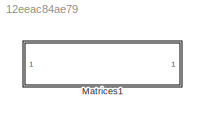
MODEL slx_12eeac84ae79
KIND model
CONFIG AbsTol = auto
CONFIG EnableMultiTasking = off
CONFIG FixedStep = auto
CONFIG MaxStep = auto
CONFIG MinStep = auto
CONFIG RelTol = 1e-3
CONFIG SampleTimeConstraint = Unconstrained
CONFIG SolverName = VariableStepAuto
CONFIG StartTime = 0.0
CONFIG StopTime = 10.0
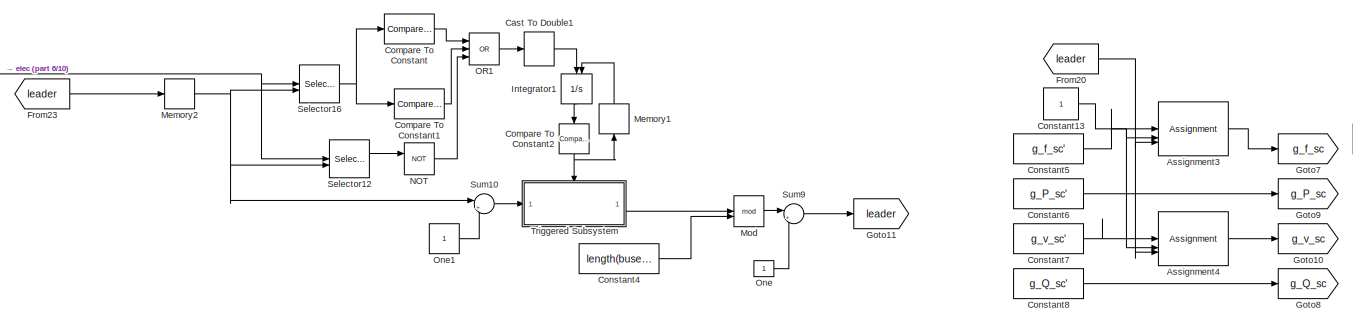
[diagram: Matrices1 - part 1/10, top left region]
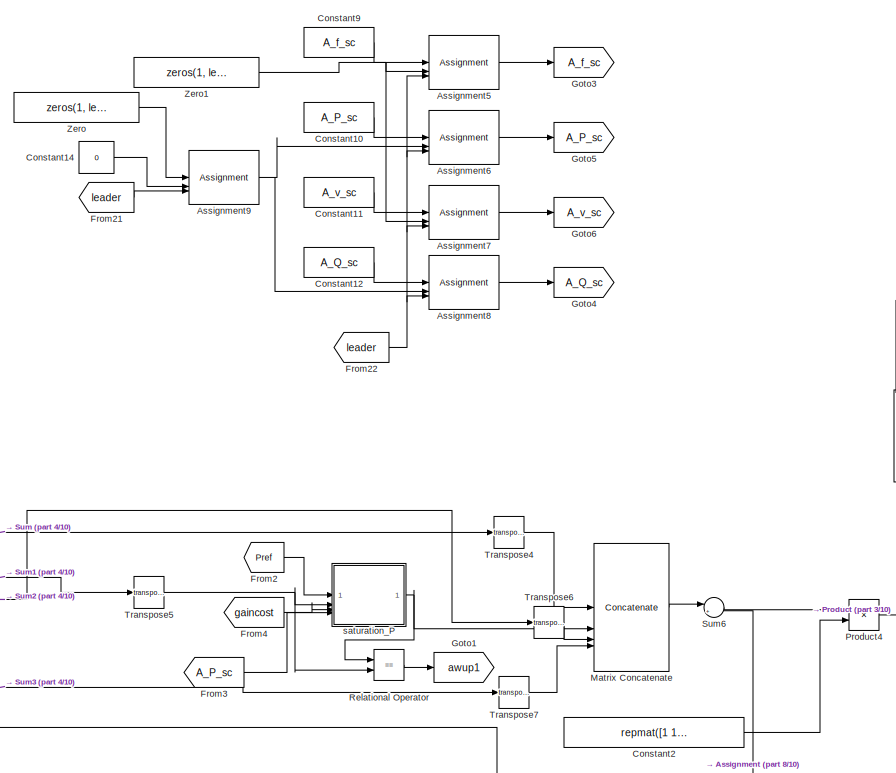
[diagram: Matrices1 - part 2/10, top center region]
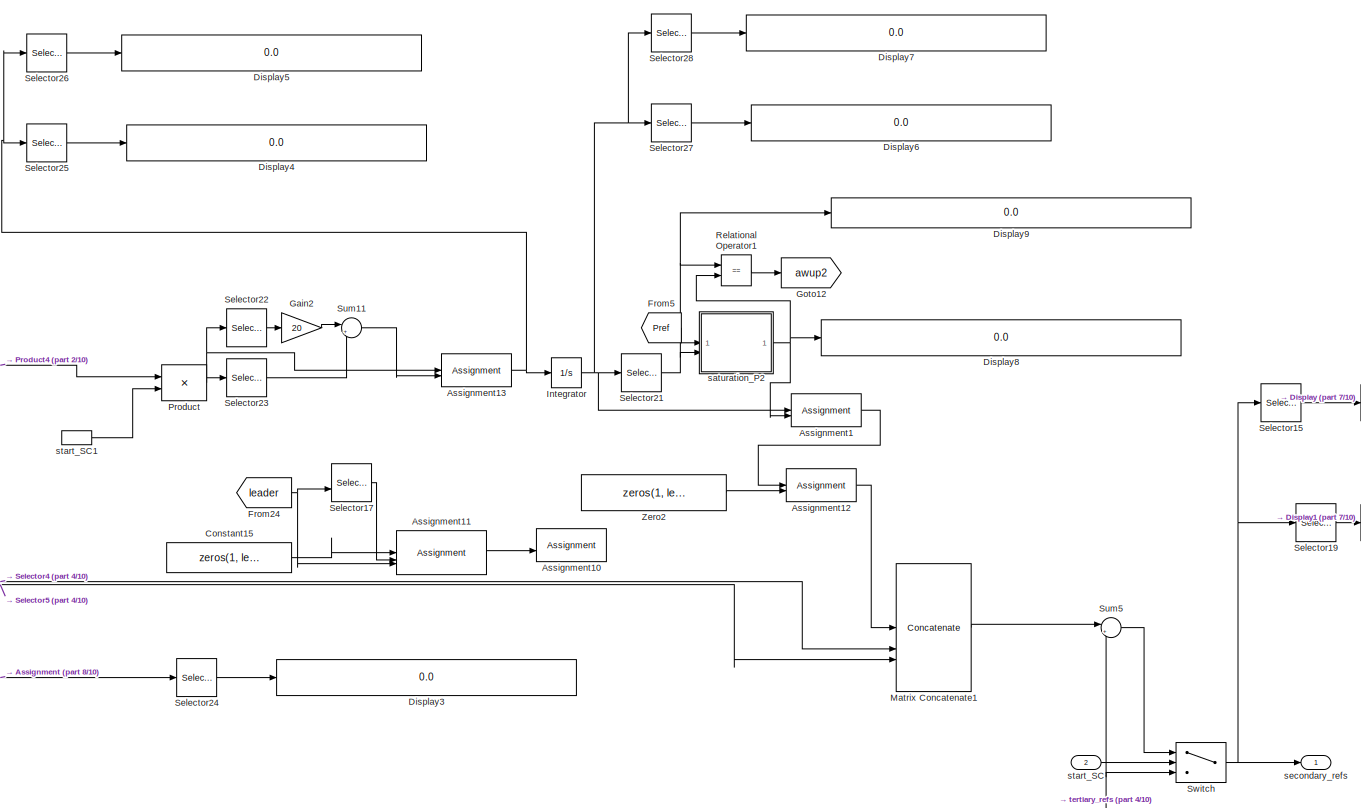
[diagram: Matrices1 - part 3/10, middle right region]
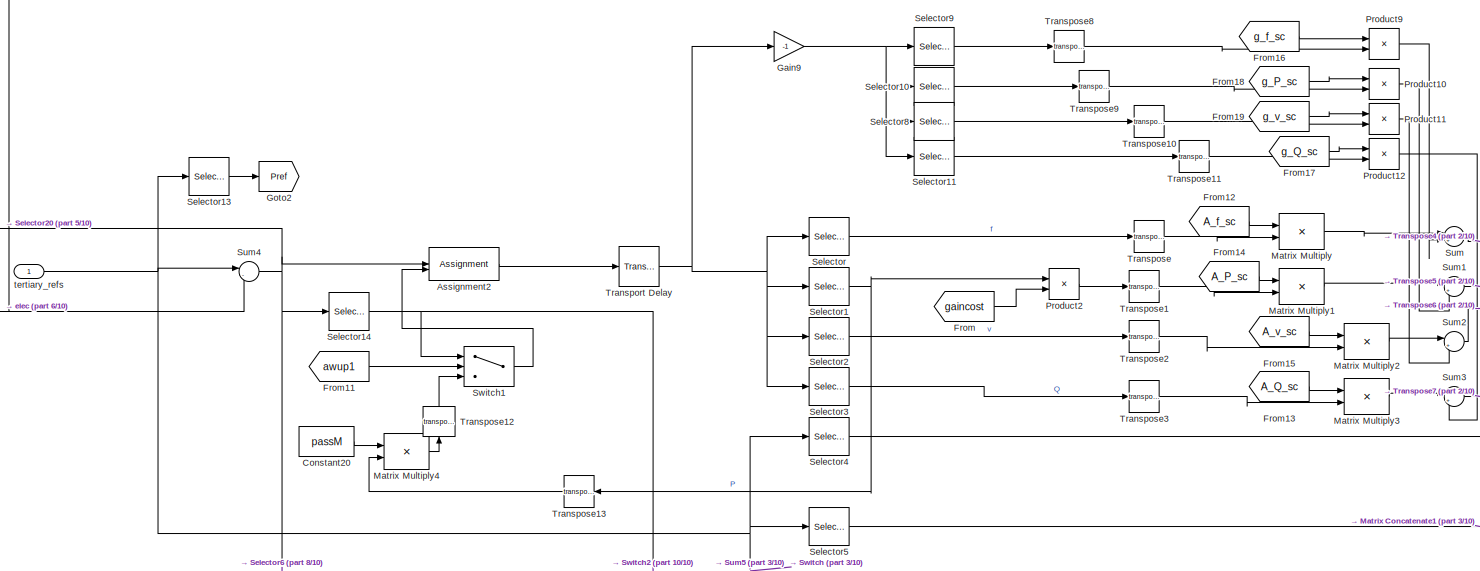
[diagram: Matrices1 - part 4/10, top left region]
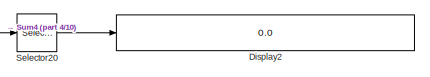
[diagram: Matrices1 - part 5/10, top left region]
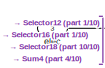
[diagram: Matrices1 - part 6/10, middle left region]
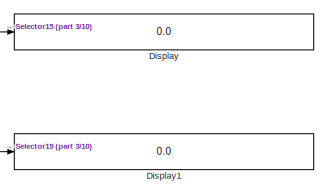
[diagram: Matrices1 - part 7/10, middle right region]
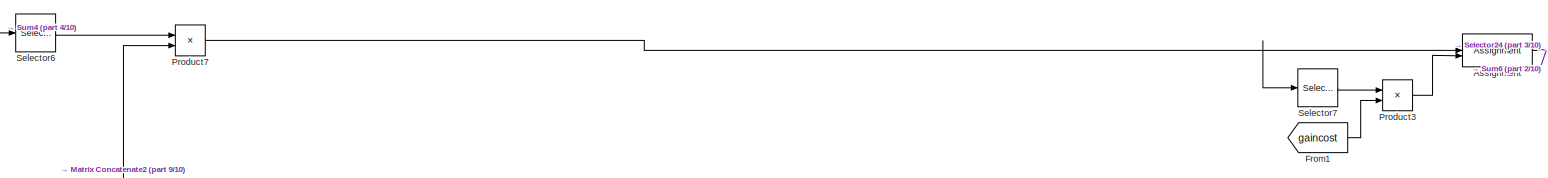
[diagram: Matrices1 - part 8/10, central region]
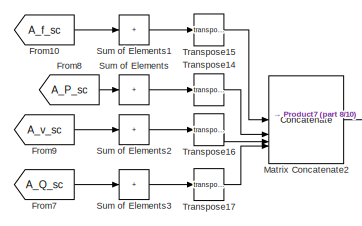
[diagram: Matrices1 - part 9/10, middle left region]
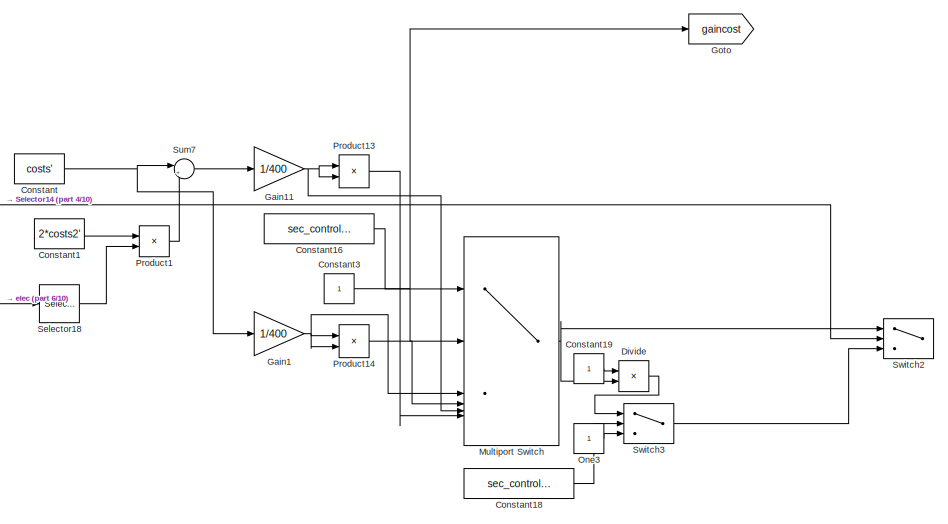
[diagram: Matrices1 - part 10/10, bottom center region]
BLOCK [SubSystem] Matrices1
  NameLocation = top
  VariantControl = Matrices1
BLOCK [Assignment] Matrices1/Assignment
  DiagnosticForDimensions = Warning
  IndexOptions = Index vector (dialog),Assign all
  Indices = 2,1
  NumberOfDimensions = 2
  OutputSizes = 1,1
BLOCK [Assignment] Matrices1/Assignment1
  DiagnosticForDimensions = Warning
  IndexOptions = Index vector (dialog),Assign all
  Indices = 2,1
  NumberOfDimensions = 2
  OutputSizes = 1,1
BLOCK [Assignment] Matrices1/Assignment10
  DiagnosticForDimensions = Warning
  IndexOptions = Index vector (dialog),Assign all
  Indices = 1,1
  NumberOfDimensions = 2
  OutputSizes = 1,1
BLOCK [Assignment] Matrices1/Assignment11
  DiagnosticForDimensions = Warning
  IndexOptions = Index vector (port)
  Indices = 1
  OutputSizes = 1
BLOCK [Assignment] Matrices1/Assignment12
  DiagnosticForDimensions = Warning
  IndexOptions = Index vector (dialog),Assign all
  Indices = 1,1
  NumberOfDimensions = 2
  OutputSizes = 1,1
BLOCK [Assignment] Matrices1/Assignment13
  DiagnosticForDimensions = Warning
  IndexOptions = Index vector (dialog),Assign all
  Indices = 2,1
  NumberOfDimensions = 2
  OutputSizes = 1,1
BLOCK [Assignment] Matrices1/Assignment2
  DiagnosticForDimensions = Warning
  IndexOptions = Index vector (dialog),Assign all
  Indices = 2,1
  NumberOfDimensions = 2
  OutputSizes = 1,1
BLOCK [Assignment] Matrices1/Assignment3
  DiagnosticForDimensions = Warning
  IndexOptions = Index vector (port)
  Indices = 1
  OutputSizes = 1
BLOCK [Assignment] Matrices1/Assignment4
  DiagnosticForDimensions = Warning
  IndexOptions = Index vector (port)
  Indices = 1
  OutputSizes = 1
BLOCK [Assignment] Matrices1/Assignment5
  DiagnosticForDimensions = Warning
  IndexOptions = Index vector (port),Assign all
  Indices = 1,1
  NumberOfDimensions = 2
  OutputSizes = 1,1
BLOCK [Assignment] Matrices1/Assignment6
  DiagnosticForDimensions = Warning
  IndexOptions = Index vector (port),Assign all
  Indices = 1,1
  NumberOfDimensions = 2
  OutputSizes = 1,1
BLOCK [Assignment] Matrices1/Assignment7
  DiagnosticForDimensions = Warning
  IndexOptions = Index vector (port),Assign all
  Indices = 1,1
  NumberOfDimensions = 2
  OutputSizes = 1,1
BLOCK [Assignment] Matrices1/Assignment8
  DiagnosticForDimensions = Warning
  IndexOptions = Index vector (port),Assign all
  Indices = 1,1
  NumberOfDimensions = 2
  OutputSizes = 1,1
BLOCK [Assignment] Matrices1/Assignment9
  DiagnosticForDimensions = Warning
  IndexOptions = Index vector (port)
  Indices = 1
  OutputSizes = 1
BLOCK [DataTypeConversion] Matrices1/Cast To Double1
  OutDataTypeStr = double
  RndMeth = Floor
  SaturateOnIntegerOverflow = off
BLOCK [Reference] Matrices1/Compare To Constant  REF=simulink/Logic and Bit
Operations/Compare
To Constant
  SourceBlock = simulink/Logic and Bit\nOperations/Compare\nTo Constant
  SourceType = Compare To Constant
BLOCK [Reference] Matrices1/Compare To Constant1  REF=simulink/Logic and Bit
Operations/Compare
To Constant
  SourceBlock = simulink/Logic and Bit\nOperations/Compare\nTo Constant
  SourceType = Compare To Constant
BLOCK [Reference] Matrices1/Compare To Constant2  REF=simulink/Logic and Bit
Operations/Compare
To Constant
  NameLocation = left
  SourceBlock = simulink/Logic and Bit\nOperations/Compare\nTo Constant
  SourceType = Compare To Constant
BLOCK [Constant] Matrices1/Constant
  Commented = on
  Value = costs'
  VectorParams1D = off
BLOCK [Constant] Matrices1/Constant1
  Commented = on
  Value = 2*costs2'
  VectorParams1D = off
BLOCK [Constant] Matrices1/Constant10
  Value = A_P_sc
  VectorParams1D = off
BLOCK [Constant] Matrices1/Constant11
  Value = A_v_sc
  VectorParams1D = off
BLOCK [Constant] Matrices1/Constant12
  Value = A_Q_sc
  VectorParams1D = off
BLOCK [Constant] Matrices1/Constant13
BLOCK [Constant] Matrices1/Constant14
  Value = 0
BLOCK [Constant] Matrices1/Constant15
  Value = zeros(1, length(buses_lf))
  VectorParams1D = off
BLOCK [Constant] Matrices1/Constant16
  Commented = on
  Value = sec_control_structure
BLOCK [Constant] Matrices1/Constant18
  Commented = on
  Value = sec_control_structure
BLOCK [Constant] Matrices1/Constant19
  Commented = on
  VectorParams1D = off
BLOCK [Constant] Matrices1/Constant2
  Value = repmat([1 1 1 1]', 1, length(buses_lf))
BLOCK [Constant] Matrices1/Constant20
  Value = passM
  VectorParams1D = off
BLOCK [Constant] Matrices1/Constant3
  Commented = on
BLOCK [Constant] Matrices1/Constant4
  Value = length(buses_lf)
BLOCK [Constant] Matrices1/Constant5
  Value = g_f_sc'
  VectorParams1D = off
BLOCK [Constant] Matrices1/Constant6
  Value = g_P_sc'
  VectorParams1D = off
BLOCK [Constant] Matrices1/Constant7
  Value = g_v_sc'
  VectorParams1D = off
BLOCK [Constant] Matrices1/Constant8
  Value = g_Q_sc'
  VectorParams1D = off
BLOCK [Constant] Matrices1/Constant9
  Value = A_f_sc
  VectorParams1D = off
BLOCK [Display] Matrices1/Display
  Decimation = 1
BLOCK [Display] Matrices1/Display1
  Decimation = 1
BLOCK [Display] Matrices1/Display2
  Decimation = 1
BLOCK [Display] Matrices1/Display3
  Decimation = 1
BLOCK [Display] Matrices1/Display4
  Decimation = 1
BLOCK [Display] Matrices1/Display5
  Decimation = 1
BLOCK [Display] Matrices1/Display6
  Decimation = 1
BLOCK [Display] Matrices1/Display7
  Decimation = 1
BLOCK [Display] Matrices1/Display8
  Decimation = 1
BLOCK [Display] Matrices1/Display9
  Decimation = 1
BLOCK [Product] Matrices1/Divide
  Commented = on
  Inputs = */
BLOCK [From] Matrices1/From
  GotoTag = gaincost
BLOCK [From] Matrices1/From1
  GotoTag = gaincost
BLOCK [From] Matrices1/From10
  GotoTag = A_f_sc
BLOCK [From] Matrices1/From11
  GotoTag = awup1
BLOCK [From] Matrices1/From12
  GotoTag = A_f_sc
BLOCK [From] Matrices1/From13
  GotoTag = A_Q_sc
BLOCK [From] Matrices1/From14
  GotoTag = A_P_sc
BLOCK [From] Matrices1/From15
  GotoTag = A_v_sc
BLOCK [From] Matrices1/From16
  GotoTag = g_f_sc
BLOCK [From] Matrices1/From17
  GotoTag = g_Q_sc
BLOCK [From] Matrices1/From18
  GotoTag = g_P_sc
BLOCK [From] Matrices1/From19
  GotoTag = g_v_sc
BLOCK [From] Matrices1/From2
  GotoTag = Pref
BLOCK [From] Matrices1/From20
  GotoTag = leader
BLOCK [From] Matrices1/From21
  GotoTag = leader
BLOCK [From] Matrices1/From22
  GotoTag = leader
BLOCK [From] Matrices1/From23
  GotoTag = leader
BLOCK [From] Matrices1/From24
  GotoTag = leader
BLOCK [From] Matrices1/From3
  GotoTag = A_P_sc
BLOCK [From] Matrices1/From4
  GotoTag = gaincost
BLOCK [From] Matrices1/From5
  GotoTag = Pref
BLOCK [From] Matrices1/From7
  GotoTag = A_Q_sc
BLOCK [From] Matrices1/From8
  GotoTag = A_P_sc
BLOCK [From] Matrices1/From9
  GotoTag = A_v_sc
BLOCK [Gain] Matrices1/Gain1
  Commented = on
  Gain = 1/400
BLOCK [Gain] Matrices1/Gain11
  Commented = on
  Gain = 1/400
BLOCK [Gain] Matrices1/Gain2
  Gain = 20
BLOCK [Gain] Matrices1/Gain9
  Gain = -1
BLOCK [Goto] Matrices1/Goto
  GotoTag = gaincost
BLOCK [Goto] Matrices1/Goto1
  GotoTag = awup1
BLOCK [Goto] Matrices1/Goto10
  GotoTag = g_v_sc
BLOCK [Goto] Matrices1/Goto11
  GotoTag = leader
BLOCK [Goto] Matrices1/Goto12
  GotoTag = awup2
BLOCK [Goto] Matrices1/Goto2
  GotoTag = Pref
BLOCK [Goto] Matrices1/Goto3
  GotoTag = A_f_sc
BLOCK [Goto] Matrices1/Goto4
  GotoTag = A_Q_sc
BLOCK [Goto] Matrices1/Goto5
  GotoTag = A_P_sc
BLOCK [Goto] Matrices1/Goto6
  GotoTag = A_v_sc
BLOCK [Goto] Matrices1/Goto7
  GotoTag = g_f_sc
BLOCK [Goto] Matrices1/Goto8
  GotoTag = g_Q_sc
BLOCK [Goto] Matrices1/Goto9
  GotoTag = g_P_sc
BLOCK [Integrator] Matrices1/Integrator
BLOCK [Integrator] Matrices1/Integrator1
  ExternalReset = rising
  NameLocation = left
BLOCK [Concatenate] Matrices1/Matrix Concatenate
  Mode = Multidimensional array
  NumInputs = 4
BLOCK [Concatenate] Matrices1/Matrix Concatenate1
  Mode = Multidimensional array
  NumInputs = 3
BLOCK [Concatenate] Matrices1/Matrix Concatenate2
  Mode = Multidimensional array
  NumInputs = 4
BLOCK [Product] Matrices1/Matrix Multiply
  Multiplication = Matrix(*)
BLOCK [Product] Matrices1/Matrix Multiply1
  Multiplication = Matrix(*)
BLOCK [Product] Matrices1/Matrix Multiply2
  Multiplication = Matrix(*)
BLOCK [Product] Matrices1/Matrix Multiply3
  Multiplication = Matrix(*)
BLOCK [Product] Matrices1/Matrix Multiply4
  Multiplication = Matrix(*)
BLOCK [Memory] Matrices1/Memory1
  NameLocation = right
BLOCK [Memory] Matrices1/Memory2
  InitialCondition = 1
BLOCK [Math] Matrices1/Mod
  Operator = mod
BLOCK [MultiPortSwitch] Matrices1/Multiport Switch
  Commented = on
  InputSameDT = off
  Inputs = 5
  SaturateOnIntegerOverflow = off
BLOCK [Logic] Matrices1/NOT
  AllPortsSameDT = off
  IconShape = distinctive
  Operator = NOT
  OutDataTypeStr = boolean
BLOCK [Logic] Matrices1/OR1
  AllPortsSameDT = off
  IconShape = distinctive
  Inputs = 3
  Operator = OR
  OutDataTypeStr = boolean
BLOCK [Constant] Matrices1/One
  OutDataTypeStr = Inherit: Inherit via back propagation
BLOCK [Constant] Matrices1/One1
  OutDataTypeStr = Inherit: Inherit via back propagation
BLOCK [Constant] Matrices1/One3
  Commented = on
  OutDataTypeStr = Inherit: Inherit via back propagation
BLOCK [Product] Matrices1/Product
BLOCK [Product] Matrices1/Product1
  Commented = on
BLOCK [Product] Matrices1/Product10
BLOCK [Product] Matrices1/Product11
BLOCK [Product] Matrices1/Product12
BLOCK [Product] Matrices1/Product13
  Commented = on
BLOCK [Product] Matrices1/Product14
  Commented = on
BLOCK [Product] Matrices1/Product2
BLOCK [Product] Matrices1/Product3
BLOCK [Product] Matrices1/Product4
BLOCK [Product] Matrices1/Product7
BLOCK [Product] Matrices1/Product9
BLOCK [RelationalOperator] Matrices1/Relational Operator
  InputSameDT = off
  Operator = ==
  OutDataTypeStr = boolean
  RndMeth = Simplest
BLOCK [RelationalOperator] Matrices1/Relational Operator1
  InputSameDT = off
  Operator = ==
  OutDataTypeStr = boolean
  RndMeth = Simplest
BLOCK [Selector] Matrices1/Selector
  IndexOptions = Index vector (dialog),Select all
  Indices = 1,1
  InputPortWidth = 3
  NumberOfDimensions = 2
  OutputSizes = 1,1
BLOCK [Selector] Matrices1/Selector1
  IndexOptions = Index vector (dialog),Select all
  Indices = 2,1
  InputPortWidth = 3
  NumberOfDimensions = 2
  OutputSizes = 1,1
BLOCK [Selector] Matrices1/Selector10
  IndexOptions = Index vector (dialog),Select all
  Indices = 2,1
  InputPortWidth = 3
  NumberOfDimensions = 2
  OutputSizes = 1,1
BLOCK [Selector] Matrices1/Selector11
  IndexOptions = Index vector (dialog),Select all
  Indices = 4,1
  InputPortWidth = 3
  NumberOfDimensions = 2
  OutputSizes = 1,1
BLOCK [Selector] Matrices1/Selector12
  IndexOptions = Index vector (dialog),Index vector (port)
  Indices = 6,1
  InputPortWidth = length(buses_lf)
  NumberOfDimensions = 2
  OutputSizes = 1,1
BLOCK [Selector] Matrices1/Selector13
  IndexOptions = Index vector (dialog),Select all
  Indices = 2,1
  InputPortWidth = 3
  NumberOfDimensions = 2
  OutputSizes = 1,1
BLOCK [Selector] Matrices1/Selector14
  IndexOptions = Index vector (dialog),Select all
  Indices = 2,1
  InputPortWidth = 3
  NumberOfDimensions = 2
  OutputSizes = 1,1
BLOCK [Selector] Matrices1/Selector15
  IndexOptions = Index vector (dialog),Select all
  Indices = 2,1
  InputPortWidth = 3
  NumberOfDimensions = 2
  OutputSizes = 1,1
BLOCK [Selector] Matrices1/Selector16
  IndexOptions = Index vector (dialog),Index vector (port)
  Indices = 2,1
  InputPortWidth = length(buses_lf)
  NumberOfDimensions = 2
  OutputSizes = 1,1
BLOCK [Selector] Matrices1/Selector17
  IndexOptions = Index vector (dialog),Index vector (port)
  Indices = 1,1
  InputPortWidth = 3
  NumberOfDimensions = 2
  OutputSizes = 1,1
BLOCK [Selector] Matrices1/Selector18
  Commented = on
  IndexOptions = Index vector (dialog),Select all
  Indices = 2,1
  InputPortWidth = 3
  NumberOfDimensions = 2
  OutputSizes = 1,1
BLOCK [Selector] Matrices1/Selector19
  IndexOptions = Index vector (dialog),Select all
  Indices = 1,1
  InputPortWidth = 3
  NumberOfDimensions = 2
  OutputSizes = 1,1
BLOCK [Selector] Matrices1/Selector2
  IndexOptions = Index vector (dialog),Select all
  Indices = 3,1
  InputPortWidth = 3
  NumberOfDimensions = 2
  OutputSizes = 1,1
BLOCK [Selector] Matrices1/Selector20
  IndexOptions = Index vector (dialog),Select all
  Indices = 2,1
  InputPortWidth = 3
  NumberOfDimensions = 2
  OutputSizes = 1,1
BLOCK [Selector] Matrices1/Selector21
  IndexOptions = Index vector (dialog),Select all
  Indices = 2,1
  InputPortWidth = 3
  NumberOfDimensions = 2
  OutputSizes = 1,1
BLOCK [Selector] Matrices1/Selector22
  IndexOptions = Index vector (dialog),Select all
  Indices = 1,1
  InputPortWidth = 3
  NumberOfDimensions = 2
  OutputSizes = 1,1
BLOCK [Selector] Matrices1/Selector23
  IndexOptions = Index vector (dialog),Select all
  Indices = 2,1
  InputPortWidth = 3
  NumberOfDimensions = 2
  OutputSizes = 1,1
BLOCK [Selector] Matrices1/Selector24
  IndexOptions = Index vector (dialog),Select all
  Indices = 2,1
  InputPortWidth = 3
  NumberOfDimensions = 2
  OutputSizes = 1,1
BLOCK [Selector] Matrices1/Selector25
  IndexOptions = Index vector (dialog),Select all
  Indices = 2,1
  InputPortWidth = 3
  NumberOfDimensions = 2
  OutputSizes = 1,1
BLOCK [Selector] Matrices1/Selector26
  IndexOptions = Index vector (dialog),Select all
  Indices = 1,1
  InputPortWidth = 3
  NumberOfDimensions = 2
  OutputSizes = 1,1
BLOCK [Selector] Matrices1/Selector27
  IndexOptions = Index vector (dialog),Select all
  Indices = 2,1
  InputPortWidth = 3
  NumberOfDimensions = 2
  OutputSizes = 1,1
BLOCK [Selector] Matrices1/Selector28
  IndexOptions = Index vector (dialog),Select all
  Indices = 1,1
  InputPortWidth = 3
  NumberOfDimensions = 2
  OutputSizes = 1,1
BLOCK [Selector] Matrices1/Selector3
  IndexOptions = Index vector (dialog),Select all
  Indices = 4,1
  InputPortWidth = 3
  NumberOfDimensions = 2
  OutputSizes = 1,1
BLOCK [Selector] Matrices1/Selector4
  IndexOptions = Index vector (dialog),Select all
  Indices = 5,1
  InputPortWidth = 3
  NumberOfDimensions = 2
  OutputSizes = 1,1
BLOCK [Selector] Matrices1/Selector5
  IndexOptions = Index vector (dialog),Select all
  Indices = 6,1
  InputPortWidth = 3
  NumberOfDimensions = 2
  OutputSizes = 1,1
BLOCK [Selector] Matrices1/Selector6
  IndexOptions = Index vector (dialog),Select all
  Indices = 1:4,1
  InputPortWidth = 3
  NumberOfDimensions = 2
  OutputSizes = 1,1
BLOCK [Selector] Matrices1/Selector7
  IndexOptions = Index vector (dialog),Select all
  Indices = 2,1
  InputPortWidth = 3
  NumberOfDimensions = 2
  OutputSizes = 1,1
BLOCK [Selector] Matrices1/Selector8
  IndexOptions = Index vector (dialog),Select all
  Indices = 3,1
  InputPortWidth = 3
  NumberOfDimensions = 2
  OutputSizes = 1,1
BLOCK [Selector] Matrices1/Selector9
  IndexOptions = Index vector (dialog),Select all
  Indices = 1,1
  InputPortWidth = 3
  NumberOfDimensions = 2
  OutputSizes = 1,1
BLOCK [Sum] Matrices1/Sum
  Inputs = |++
BLOCK [Sum] Matrices1/Sum of Elements
  CollapseDim = 2
  CollapseMode = Specified dimension
  IconShape = rectangular
  Inputs = +
BLOCK [Sum] Matrices1/Sum of Elements1
  CollapseDim = 2
  CollapseMode = Specified dimension
  IconShape = rectangular
  Inputs = +
BLOCK [Sum] Matrices1/Sum of Elements2
  CollapseDim = 2
  CollapseMode = Specified dimension
  IconShape = rectangular
  Inputs = +
BLOCK [Sum] Matrices1/Sum of Elements3
  CollapseDim = 2
  CollapseMode = Specified dimension
  IconShape = rectangular
  Inputs = +
BLOCK [Sum] Matrices1/Sum1
  Inputs = |++
BLOCK [Sum] Matrices1/Sum10
  Inputs = |+-
BLOCK [Sum] Matrices1/Sum11
  Inputs = |++
BLOCK [Sum] Matrices1/Sum2
  Inputs = |++
BLOCK [Sum] Matrices1/Sum3
  Inputs = |++
BLOCK [Sum] Matrices1/Sum4
  Inputs = |-+
BLOCK [Sum] Matrices1/Sum5
  Inputs = |++
BLOCK [Sum] Matrices1/Sum6
  Inputs = |+-
BLOCK [Sum] Matrices1/Sum7
  Commented = on
  Inputs = |++
BLOCK [Sum] Matrices1/Sum9
  Inputs = |++
BLOCK [Switch] Matrices1/Switch
  Criteria = u2 > Threshold
  InputSameDT = off
  SaturateOnIntegerOverflow = off
BLOCK [Switch] Matrices1/Switch1
  Criteria = u2 > Threshold
  InputSameDT = off
  SaturateOnIntegerOverflow = off
BLOCK [Switch] Matrices1/Switch2
  Commented = on
  Criteria = u2 > Threshold
  InputSameDT = off
  SaturateOnIntegerOverflow = off
BLOCK [Switch] Matrices1/Switch3
  Commented = on
  Criteria = u2 > Threshold
  InputSameDT = off
  SaturateOnIntegerOverflow = off
  Threshold = 1
BLOCK [TransportDelay] Matrices1/Transport Delay
  DelayTime = 0.1
  PadeOrder = 3
BLOCK [Math] Matrices1/Transpose
  Operator = transpose
BLOCK [Math] Matrices1/Transpose1
  Operator = transpose
BLOCK [Math] Matrices1/Transpose10
  Operator = transpose
BLOCK [Math] Matrices1/Transpose11
  Operator = transpose
BLOCK [Math] Matrices1/Transpose12
  NameLocation = right
  Operator = transpose
BLOCK [Math] Matrices1/Transpose13
  Operator = transpose
BLOCK [Math] Matrices1/Transpose14
  Operator = transpose
BLOCK [Math] Matrices1/Transpose15
  Operator = transpose
BLOCK [Math] Matrices1/Transpose16
  Operator = transpose
BLOCK [Math] Matrices1/Transpose17
  Operator = transpose
BLOCK [Math] Matrices1/Transpose2
  Operator = transpose
BLOCK [Math] Matrices1/Transpose3
  Operator = transpose
BLOCK [Math] Matrices1/Transpose4
  Operator = transpose
BLOCK [Math] Matrices1/Transpose5
  Operator = transpose
BLOCK [Math] Matrices1/Transpose6
  Operator = transpose
BLOCK [Math] Matrices1/Transpose7
  Operator = transpose
BLOCK [Math] Matrices1/Transpose8
  Operator = transpose
BLOCK [Math] Matrices1/Transpose9
  Operator = transpose
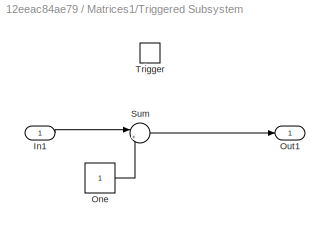
BLOCK [SubSystem] Matrices1/Triggered Subsystem
  TreatAsAtomicUnit = on
BLOCK [Inport] Matrices1/Triggered Subsystem/In1
BLOCK [Constant] Matrices1/Triggered Subsystem/One
  OutDataTypeStr = Inherit: Inherit via back propagation
BLOCK [Outport] Matrices1/Triggered Subsystem/Out1
BLOCK [Sum] Matrices1/Triggered Subsystem/Sum
  Inputs = |++
BLOCK [TriggerPort] Matrices1/Triggered Subsystem/Trigger
  StatesWhenEnabling = held
  VariantControl = (inherit)
BLOCK [Constant] Matrices1/Zero
  OutDataTypeStr = Inherit: Inherit via back propagation
  Value = zeros(1, length(buses_lf))
  VectorParams1D = off
BLOCK [Constant] Matrices1/Zero1
  OutDataTypeStr = Inherit: Inherit via back propagation
  Value = zeros(1, length(buses_lf))
  VectorParams1D = off
BLOCK [Constant] Matrices1/Zero2
  OutDataTypeStr = Inherit: Inherit via back propagation
  Value = zeros(1, length(buses_lf))
  VectorParams1D = off
BLOCK [Inport] Matrices1/elec
  Port = 3
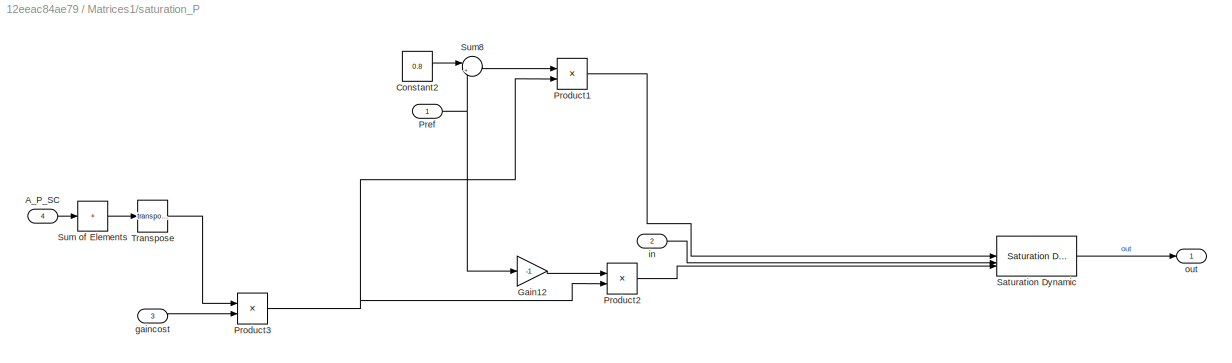
BLOCK [SubSystem] Matrices1/saturation_P
BLOCK [Inport] Matrices1/saturation_P/A_P_SC
  Port = 4
BLOCK [Constant] Matrices1/saturation_P/Constant2
  Value = 0.8
BLOCK [Gain] Matrices1/saturation_P/Gain12
  Gain = -1
BLOCK [Inport] Matrices1/saturation_P/Pref
BLOCK [Product] Matrices1/saturation_P/Product1
BLOCK [Product] Matrices1/saturation_P/Product2
BLOCK [Product] Matrices1/saturation_P/Product3
BLOCK [Reference] Matrices1/saturation_P/Saturation Dynamic  REF=simulink/Discontinuities/Saturation
Dynamic
  SourceBlock = simulink/Discontinuities/Saturation\nDynamic
  SourceType = Saturation Dynamic
BLOCK [Sum] Matrices1/saturation_P/Sum of Elements
  CollapseDim = 2
  CollapseMode = Specified dimension
  IconShape = rectangular
  Inputs = +
BLOCK [Sum] Matrices1/saturation_P/Sum8
  Inputs = |+-
BLOCK [Math] Matrices1/saturation_P/Transpose
  Operator = transpose
BLOCK [Inport] Matrices1/saturation_P/gaincost
  Port = 3
BLOCK [Inport] Matrices1/saturation_P/in
  Port = 2
BLOCK [Outport] Matrices1/saturation_P/out
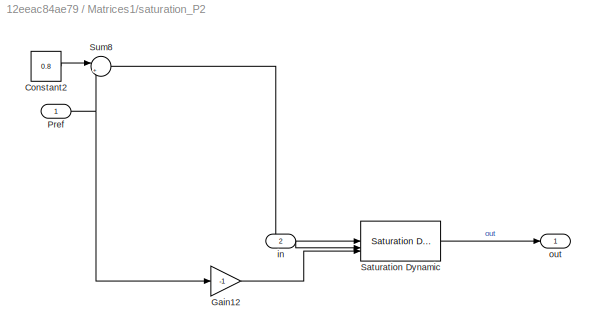
BLOCK [SubSystem] Matrices1/saturation_P2
BLOCK [Constant] Matrices1/saturation_P2/Constant2
  Value = 0.8
BLOCK [Gain] Matrices1/saturation_P2/Gain12
  Gain = -1
BLOCK [Inport] Matrices1/saturation_P2/Pref
BLOCK [Reference] Matrices1/saturation_P2/Saturation Dynamic  REF=simulink/Discontinuities/Saturation
Dynamic
  SourceBlock = simulink/Discontinuities/Saturation\nDynamic
  SourceType = Saturation Dynamic
BLOCK [Sum] Matrices1/saturation_P2/Sum8
  Inputs = |+-
BLOCK [Inport] Matrices1/saturation_P2/in
  Port = 2
BLOCK [Outport] Matrices1/saturation_P2/out
BLOCK [Outport] Matrices1/secondary_refs
BLOCK [Inport] Matrices1/start_SC
  Port = 2
BLOCK [InportShadow] Matrices1/start_SC1
  Port = 2
BLOCK [Inport] Matrices1/tertiary_refs
LINE Matrices1/Assignment11:1 -> Matrices1/Assignment10:2
LINE Matrices1/Assignment12:1 -> Matrices1/Matrix Concatenate1:1
NET Matrices1/Assignment13:1 -> Matrices1/Integrator:1, Matrices1/Selector25:1, Matrices1/Selector26:1
LINE Matrices1/Assignment1:1 -> Matrices1/Assignment12:1
LINE Matrices1/Assignment2:1 -> Matrices1/Transport Delay:1
LINE Matrices1/Assignment3:1 -> Matrices1/Goto7:1
LINE Matrices1/Assignment4:1 -> Matrices1/Goto10:1
LINE Matrices1/Assignment5:1 -> Matrices1/Goto3:1
LINE Matrices1/Assignment6:1 -> Matrices1/Goto5:1
LINE Matrices1/Assignment7:1 -> Matrices1/Goto6:1
LINE Matrices1/Assignment8:1 -> Matrices1/Goto4:1
NET Matrices1/Assignment9:1 -> Matrices1/Assignment6:2, Matrices1/Assignment8:2
NET Matrices1/Assignment:1 -> Matrices1/Selector24:1, Matrices1/Sum6:2
LINE Matrices1/Cast To Double1:1 -> Matrices1/Integrator1:1
LINE Matrices1/Compare To Constant1:1 -> Matrices1/OR1:2
NET Matrices1/Compare To Constant2:1 -> Matrices1/Memory1:1, Matrices1/Triggered Subsystem:trigger
LINE Matrices1/Compare To Constant:1 -> Matrices1/OR1:1
LINE Matrices1/Constant10:1 -> Matrices1/Assignment6:1
LINE Matrices1/Constant11:1 -> Matrices1/Assignment7:1
LINE Matrices1/Constant12:1 -> Matrices1/Assignment8:1
NET Matrices1/Constant13:1 -> Matrices1/Assignment3:2, Matrices1/Assignment4:2
LINE Matrices1/Constant14:1 -> Matrices1/Assignment9:2
LINE Matrices1/Constant15:1 -> Matrices1/Assignment11:1
LINE Matrices1/Constant16:1 -> Matrices1/Multiport Switch:1
LINE Matrices1/Constant18:1 -> Matrices1/Switch3:2
LINE Matrices1/Constant19:1 -> Matrices1/Divide:1
LINE Matrices1/Constant1:1 -> Matrices1/Product1:1
LINE Matrices1/Constant20:1 -> Matrices1/Matrix Multiply4:1
LINE Matrices1/Constant2:1 -> Matrices1/Product4:2
NET Matrices1/Constant3:1 -> Matrices1/Goto:1, Matrices1/Multiport Switch:2
LINE Matrices1/Constant4:1 -> Matrices1/Mod:2
LINE Matrices1/Constant5:1 -> Matrices1/Assignment3:1
LINE Matrices1/Constant6:1 -> Matrices1/Goto9:1
LINE Matrices1/Constant7:1 -> Matrices1/Assignment4:1
LINE Matrices1/Constant8:1 -> Matrices1/Goto8:1
LINE Matrices1/Constant9:1 -> Matrices1/Assignment5:1
NET Matrices1/Constant:1 -> Matrices1/Gain1:1, Matrices1/Sum7:1
LINE Matrices1/Divide:1 -> Matrices1/Switch3:1
LINE Matrices1/From10:1 -> Matrices1/Sum of Elements1:1
LINE Matrices1/From11:1 -> Matrices1/Switch1:2
LINE Matrices1/From12:1 -> Matrices1/Matrix Multiply:1
LINE Matrices1/From13:1 -> Matrices1/Matrix Multiply3:1
LINE Matrices1/From14:1 -> Matrices1/Matrix Multiply1:1
LINE Matrices1/From15:1 -> Matrices1/Matrix Multiply2:1
LINE Matrices1/From16:1 -> Matrices1/Product9:1
LINE Matrices1/From17:1 -> Matrices1/Product12:1
LINE Matrices1/From18:1 -> Matrices1/Product10:1
LINE Matrices1/From19:1 -> Matrices1/Product11:1
LINE Matrices1/From1:1 -> Matrices1/Product3:2
NET Matrices1/From20:1 -> Matrices1/Assignment3:3, Matrices1/Assignment4:3
LINE Matrices1/From21:1 -> Matrices1/Assignment9:3
NET Matrices1/From22:1 -> Matrices1/Assignment5:3, Matrices1/Assignment6:3, Matrices1/Assignment7:3, Matrices1/Assignment8:3
LINE Matrices1/From23:1 -> Matrices1/Memory2:1
NET Matrices1/From24:1 -> Matrices1/Assignment11:3, Matrices1/Selector17:2
LINE Matrices1/From2:1 -> Matrices1/saturation_P:1
LINE Matrices1/From3:1 -> Matrices1/saturation_P:4
LINE Matrices1/From4:1 -> Matrices1/saturation_P:3
LINE Matrices1/From5:1 -> Matrices1/saturation_P2:1
LINE Matrices1/From7:1 -> Matrices1/Sum of Elements3:1
LINE Matrices1/From8:1 -> Matrices1/Sum of Elements:1
LINE Matrices1/From9:1 -> Matrices1/Sum of Elements2:1
LINE Matrices1/From:1 -> Matrices1/Product2:2
NET Matrices1/Gain11:1 -> Matrices1/Multiport Switch:5, Matrices1/Product13:1, Matrices1/Product13:2
NET Matrices1/Gain1:1 -> Matrices1/Multiport Switch:3, Matrices1/Product14:1, Matrices1/Product14:2
LINE Matrices1/Gain2:1 -> Matrices1/Sum11:1
NET Matrices1/Gain9:1 -> Matrices1/Selector10:1, Matrices1/Selector11:1, Matrices1/Selector8:1, Matrices1/Selector9:1
LINE Matrices1/Integrator1:1 -> Matrices1/Compare To Constant2:1
NET Matrices1/Integrator:1 -> Matrices1/Assignment1:1, Matrices1/Selector21:1, Matrices1/Selector27:1, Matrices1/Selector28:1
LINE Matrices1/Matrix Concatenate1:1 -> Matrices1/Sum5:1
LINE Matrices1/Matrix Concatenate2:1 -> Matrices1/Product7:2
LINE Matrices1/Matrix Concatenate:1 -> Matrices1/Sum6:1
LINE Matrices1/Matrix Multiply1:1 -> Matrices1/Sum1:1
LINE Matrices1/Matrix Multiply2:1 -> Matrices1/Sum2:1
LINE Matrices1/Matrix Multiply3:1 -> Matrices1/Sum3:1
LINE Matrices1/Matrix Multiply4:1 -> Matrices1/Transpose12:1
LINE Matrices1/Matrix Multiply:1 -> Matrices1/Sum:1
LINE Matrices1/Memory1:1 -> Matrices1/Integrator1:2
NET Matrices1/Memory2:1 -> Matrices1/Selector12:2, Matrices1/Selector16:2, Matrices1/Sum10:1
LINE Matrices1/Mod:1 -> Matrices1/Sum9:1
NET Matrices1/Multiport Switch:1 -> Matrices1/Divide:2, Matrices1/Switch2:1
LINE Matrices1/NOT:1 -> Matrices1/OR1:3
LINE Matrices1/OR1:1 -> Matrices1/Cast To Double1:1
LINE Matrices1/One1:1 -> Matrices1/Sum10:2
LINE Matrices1/One3:1 -> Matrices1/Switch3:3
LINE Matrices1/One:1 -> Matrices1/Sum9:2
LINE Matrices1/Product10:1 -> Matrices1/Sum1:2
LINE Matrices1/Product11:1 -> Matrices1/Sum2:2
LINE Matrices1/Product12:1 -> Matrices1/Sum3:2
LINE Matrices1/Product13:1 -> Matrices1/Multiport Switch:6
LINE Matrices1/Product14:1 -> Matrices1/Multiport Switch:4
LINE Matrices1/Product1:1 -> Matrices1/Sum7:2
LINE Matrices1/Product2:1 -> Matrices1/Transpose1:1
LINE Matrices1/Product3:1 -> Matrices1/Assignment:2
LINE Matrices1/Product4:1 -> Matrices1/Product:1
NET Matrices1/Product7:1 -> Matrices1/Assignment:1, Matrices1/Selector7:1
LINE Matrices1/Product9:1 -> Matrices1/Sum:2
NET Matrices1/Product:1 -> Matrices1/Assignment13:1, Matrices1/Selector22:1, Matrices1/Selector23:1
LINE Matrices1/Relational Operator1:1 -> Matrices1/Goto12:1
LINE Matrices1/Relational Operator:1 -> Matrices1/Goto1:1
LINE Matrices1/Selector10:1 -> Matrices1/Transpose9:1
LINE Matrices1/Selector11:1 -> Matrices1/Transpose11:1
LINE Matrices1/Selector12:1 -> Matrices1/NOT:1
LINE Matrices1/Selector13:1 -> Matrices1/Goto2:1
NET Matrices1/Selector14:1 -> Matrices1/Switch1:1, Matrices1/Switch2:2
LINE Matrices1/Selector15:1 -> Matrices1/Display:1
NET Matrices1/Selector16:1 -> Matrices1/Compare To Constant1:1, Matrices1/Compare To Constant:1
LINE Matrices1/Selector17:1 -> Matrices1/Assignment11:2
LINE Matrices1/Selector18:1 -> Matrices1/Product1:2
LINE Matrices1/Selector19:1 -> Matrices1/Display1:1
NET Matrices1/Selector1:1 -> Matrices1/Product2:1, Matrices1/Transpose13:1
LINE Matrices1/Selector20:1 -> Matrices1/Display2:1
NET Matrices1/Selector21:1 -> Matrices1/Display9:1, Matrices1/Relational Operator1:1, Matrices1/saturation_P2:2
LINE Matrices1/Selector22:1 -> Matrices1/Gain2:1
LINE Matrices1/Selector23:1 -> Matrices1/Sum11:2
LINE Matrices1/Selector24:1 -> Matrices1/Display3:1
LINE Matrices1/Selector25:1 -> Matrices1/Display4:1
LINE Matrices1/Selector26:1 -> Matrices1/Display5:1
LINE Matrices1/Selector27:1 -> Matrices1/Display6:1
LINE Matrices1/Selector28:1 -> Matrices1/Display7:1
LINE Matrices1/Selector2:1 -> Matrices1/Transpose2:1
LINE Matrices1/Selector3:1 -> Matrices1/Transpose3:1
LINE Matrices1/Selector4:1 -> Matrices1/Matrix Concatenate1:2
LINE Matrices1/Selector5:1 -> Matrices1/Matrix Concatenate1:3
LINE Matrices1/Selector6:1 -> Matrices1/Product7:1
LINE Matrices1/Selector7:1 -> Matrices1/Product3:1
LINE Matrices1/Selector8:1 -> Matrices1/Transpose10:1
LINE Matrices1/Selector9:1 -> Matrices1/Transpose8:1
LINE Matrices1/Selector:1 -> Matrices1/Transpose:1
LINE Matrices1/Sum of Elements1:1 -> Matrices1/Transpose15:1
LINE Matrices1/Sum of Elements2:1 -> Matrices1/Transpose16:1
LINE Matrices1/Sum of Elements3:1 -> Matrices1/Transpose17:1
LINE Matrices1/Sum of Elements:1 -> Matrices1/Transpose14:1
LINE Matrices1/Sum10:1 -> Matrices1/Triggered Subsystem:1
LINE Matrices1/Sum11:1 -> Matrices1/Assignment13:2
LINE Matrices1/Sum1:1 -> Matrices1/Transpose5:1
LINE Matrices1/Sum2:1 -> Matrices1/Transpose6:1
LINE Matrices1/Sum3:1 -> Matrices1/Transpose7:1
NET Matrices1/Sum4:1 -> Matrices1/Assignment2:1, Matrices1/Selector14:1, Matrices1/Selector20:1, Matrices1/Selector6:1
LINE Matrices1/Sum5:1 -> Matrices1/Switch:1
LINE Matrices1/Sum6:1 -> Matrices1/Product4:1
LINE Matrices1/Sum7:1 -> Matrices1/Gain11:1
LINE Matrices1/Sum9:1 -> Matrices1/Goto11:1
LINE Matrices1/Sum:1 -> Matrices1/Transpose4:1
LINE Matrices1/Switch1:1 -> Matrices1/Assignment2:2
LINE Matrices1/Switch3:1 -> Matrices1/Switch2:3
NET Matrices1/Switch:1 -> Matrices1/Selector15:1, Matrices1/Selector19:1, Matrices1/secondary_refs:1
NET Matrices1/Transport Delay:1 -> Matrices1/Gain9:1, Matrices1/Selector1:1, Matrices1/Selector2:1, Matrices1/Selector3:1, Matrices1/Selector:1
LINE Matrices1/Transpose10:1 -> Matrices1/Product11:2
LINE Matrices1/Transpose11:1 -> Matrices1/Product12:2
LINE Matrices1/Transpose12:1 -> Matrices1/Switch1:3
LINE Matrices1/Transpose13:1 -> Matrices1/Matrix Multiply4:2
LINE Matrices1/Transpose14:1 -> Matrices1/Matrix Concatenate2:2
LINE Matrices1/Transpose15:1 -> Matrices1/Matrix Concatenate2:1
LINE Matrices1/Transpose16:1 -> Matrices1/Matrix Concatenate2:3
LINE Matrices1/Transpose17:1 -> Matrices1/Matrix Concatenate2:4
LINE Matrices1/Transpose1:1 -> Matrices1/Matrix Multiply1:2
LINE Matrices1/Transpose2:1 -> Matrices1/Matrix Multiply2:2
LINE Matrices1/Transpose3:1 -> Matrices1/Matrix Multiply3:2
LINE Matrices1/Transpose4:1 -> Matrices1/Matrix Concatenate:1
NET Matrices1/Transpose5:1 -> Matrices1/Relational Operator:2, Matrices1/saturation_P:2
LINE Matrices1/Transpose6:1 -> Matrices1/Matrix Concatenate:3
LINE Matrices1/Transpose7:1 -> Matrices1/Matrix Concatenate:4
LINE Matrices1/Transpose8:1 -> Matrices1/Product9:2
LINE Matrices1/Transpose9:1 -> Matrices1/Product10:2
LINE Matrices1/Transpose:1 -> Matrices1/Matrix Multiply:2
LINE Matrices1/Triggered Subsystem/In1:1 -> Matrices1/Triggered Subsystem/Sum:1
LINE Matrices1/Triggered Subsystem/One:1 -> Matrices1/Triggered Subsystem/Sum:2
LINE Matrices1/Triggered Subsystem/Sum:1 -> Matrices1/Triggered Subsystem/Out1:1
LINE Matrices1/Triggered Subsystem:1 -> Matrices1/Mod:1
NET Matrices1/Zero1:1 -> Matrices1/Assignment5:2, Matrices1/Assignment7:2
LINE Matrices1/Zero2:1 -> Matrices1/Assignment12:2
LINE Matrices1/Zero:1 -> Matrices1/Assignment9:1
NET Matrices1/elec:1 -> Matrices1/Selector12:1, Matrices1/Selector16:1, Matrices1/Selector18:1, Matrices1/Sum4:2
LINE Matrices1/saturation_P/A_P_SC:1 -> Matrices1/saturation_P/Sum of Elements:1
LINE Matrices1/saturation_P/Constant2:1 -> Matrices1/saturation_P/Sum8:1
LINE Matrices1/saturation_P/Gain12:1 -> Matrices1/saturation_P/Product2:1
NET Matrices1/saturation_P/Pref:1 -> Matrices1/saturation_P/Gain12:1, Matrices1/saturation_P/Sum8:2
LINE Matrices1/saturation_P/Product1:1 -> Matrices1/saturation_P/Saturation Dynamic:1
LINE Matrices1/saturation_P/Product2:1 -> Matrices1/saturation_P/Saturation Dynamic:3
NET Matrices1/saturation_P/Product3:1 -> Matrices1/saturation_P/Product1:2, Matrices1/saturation_P/Product2:2
LINE Matrices1/saturation_P/Saturation Dynamic:1 -> Matrices1/saturation_P/out:1
LINE Matrices1/saturation_P/Sum of Elements:1 -> Matrices1/saturation_P/Transpose:1
LINE Matrices1/saturation_P/Sum8:1 -> Matrices1/saturation_P/Product1:1
LINE Matrices1/saturation_P/Transpose:1 -> Matrices1/saturation_P/Product3:1
LINE Matrices1/saturation_P/gaincost:1 -> Matrices1/saturation_P/Product3:2
LINE Matrices1/saturation_P/in:1 -> Matrices1/saturation_P/Saturation Dynamic:2
LINE Matrices1/saturation_P2/Constant2:1 -> Matrices1/saturation_P2/Sum8:1
LINE Matrices1/saturation_P2/Gain12:1 -> Matrices1/saturation_P2/Saturation Dynamic:3
NET Matrices1/saturation_P2/Pref:1 -> Matrices1/saturation_P2/Gain12:1, Matrices1/saturation_P2/Sum8:2
LINE Matrices1/saturation_P2/Saturation Dynamic:1 -> Matrices1/saturation_P2/out:1
LINE Matrices1/saturation_P2/Sum8:1 -> Matrices1/saturation_P2/Saturation Dynamic:1
LINE Matrices1/saturation_P2/in:1 -> Matrices1/saturation_P2/Saturation Dynamic:2
NET Matrices1/saturation_P2:1 -> Matrices1/Assignment1:2, Matrices1/Display8:1, Matrices1/Relational Operator1:2
NET Matrices1/saturation_P:1 -> Matrices1/Matrix Concatenate:2, Matrices1/Relational Operator:1
LINE Matrices1/start_SC1:1 -> Matrices1/Product:2
LINE Matrices1/start_SC:1 -> Matrices1/Switch:2
NET Matrices1/tertiary_refs:1 -> Matrices1/Selector13:1, Matrices1/Selector4:1, Matrices1/Selector5:1, Matrices1/Sum4:1, Matrices1/Sum5:2, Matrices1/Switch:3
note: NET lines group one-source signal fan-out (src -> all destinations, sorted); 1:1 wires keep LINE
